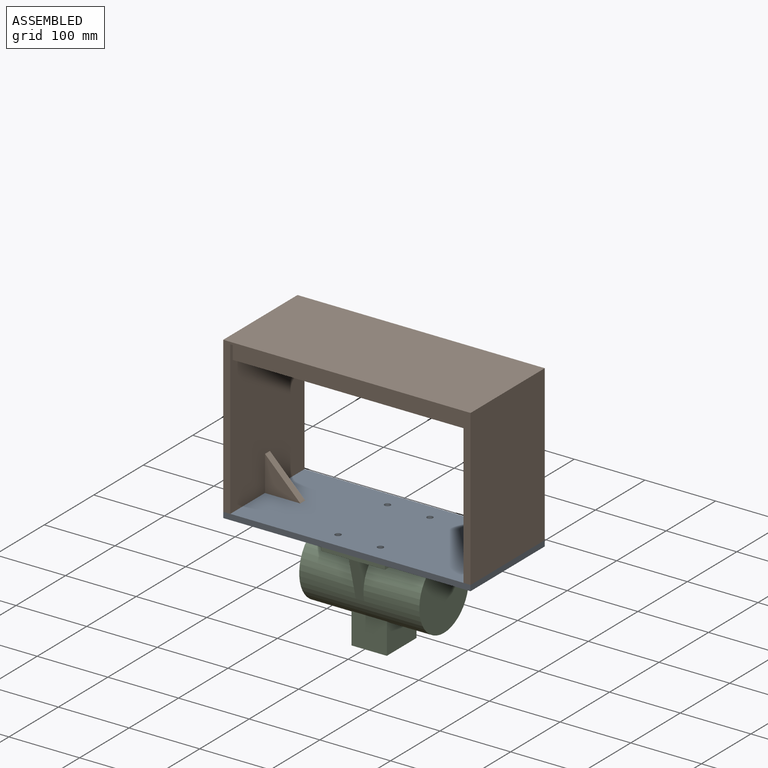
[diagram: assembled view]
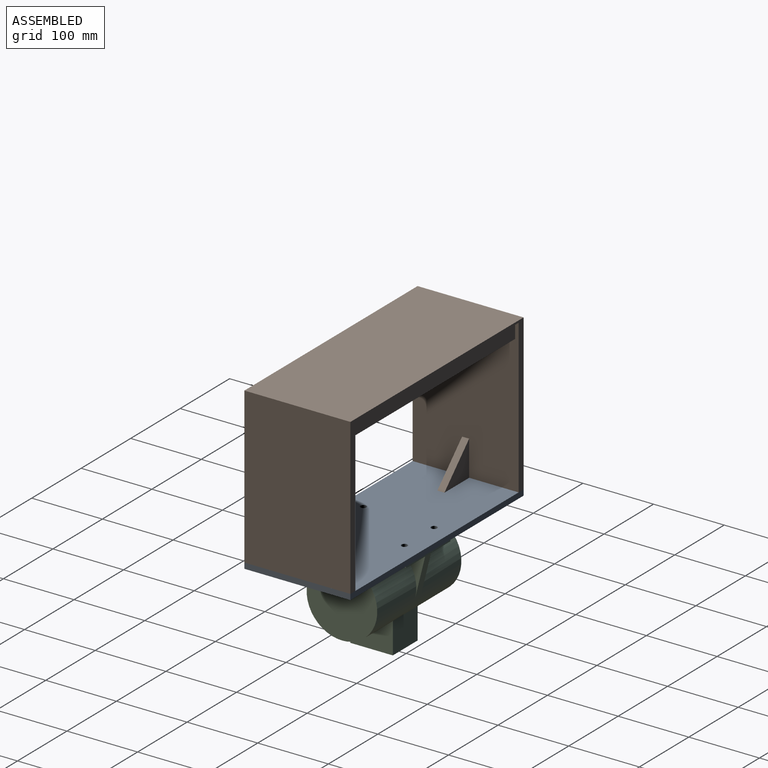
[diagram: assembled view, second angle]
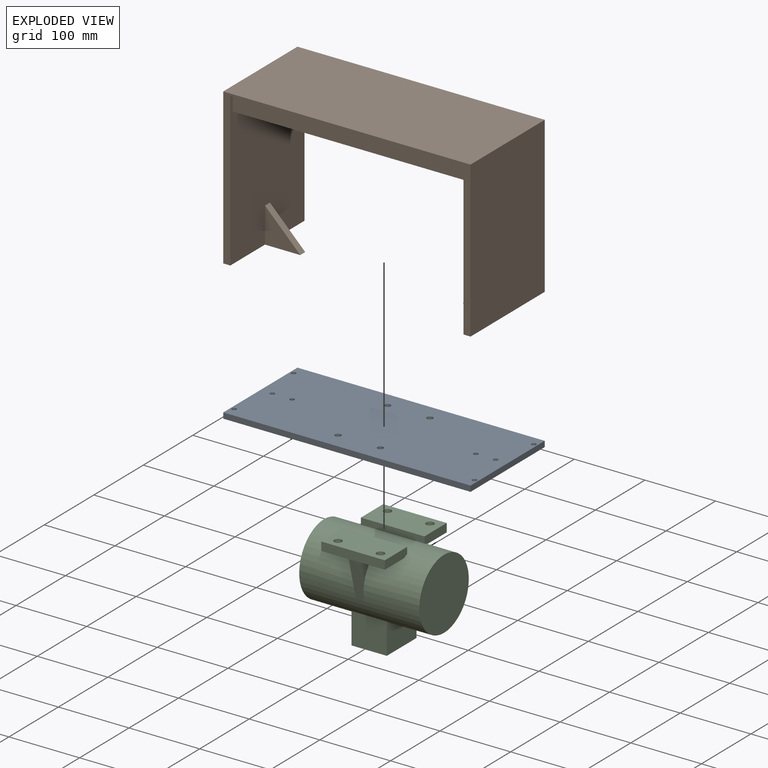
[diagram: exploded view]
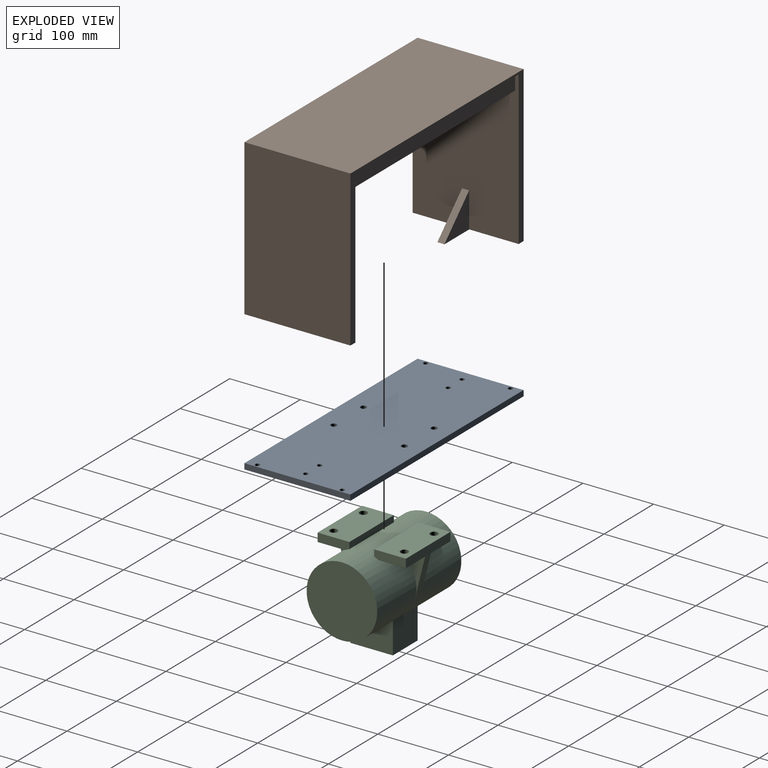
[diagram: exploded view, second angle]
ASSEMBLY  parts=3 mates=2
PART A: 18 faces, bbox 350x150x8 mm
  f0: plane 350x8mm, normal (0,-1,0), area 2800mm2, adj f1,f3,f4,f5
  f1: plane 150x8mm, normal (1,0,0), area 1200mm2, adj f0,f2,f4,f5
  f2: plane 350x8mm, normal (0,1,0), area 2800mm2, adj f1,f3,f4,f5
  f3: plane 150x8mm, normal (-1,0,0), area 1200mm2, adj f0,f2,f4,f5
  f4: plane 350x150mm, normal (0,0,1), area 52007.6mm2, adj f0,f1,f2,f3,f6,f7,f8,f9
  f5: plane 350x150mm, normal (0,0,-1), area 52007.6mm2, adj f0,f1,f2,f3,f6,f7,f8,f9
  f6: cylinder r=3.25mm len=8mm, axis (0,0,-1), area 163.4mm2, adj f4,f5
  f7: cylinder r=3.25mm len=8mm, axis (0,0,-1), area 163.4mm2, adj f4,f5
  f8: cylinder r=3.25mm len=8mm, axis (0,0,-1), area 163.4mm2, adj f4,f5
  f9: cylinder r=3.25mm len=8mm, axis (0,0,-1), area 163.4mm2, adj f4,f5
  f10: cylinder r=3.25mm len=8mm, axis (0,0,-1), area 163.4mm2, adj f4,f5
  f11: cylinder r=3.25mm len=8mm, axis (0,0,-1), area 163.4mm2, adj f4,f5
  f12: cylinder r=3.25mm len=8mm, axis (0,0,-1), area 163.4mm2, adj f4,f5
  f13: cylinder r=3.25mm len=8mm, axis (0,0,-1), area 163.4mm2, adj f4,f5
  f14: cylinder r=4.25mm len=8.5mm, axis (0,0,-1), area 213.6mm2, adj f4,f5
  f15: cylinder r=4.25mm len=8.5mm, axis (0,0,-1), area 213.6mm2, adj f4,f5
  f16: cylinder r=4.25mm len=8.5mm, axis (0,0,-1), area 213.6mm2, adj f4,f5
  f17: cylinder r=4.25mm len=8.5mm, axis (0,0,-1), area 213.6mm2, adj f4,f5
PART B: 52 faces, bbox 350x150x220 mm
  f0: plane 217x150mm, normal (-1,0,0), area 31082mm2, adj f2,f3,f4,f5,f7,f11,f12,f13
  f1: plane 217x150mm, normal (1,0,0), area 31082mm2, adj f2,f3,f4,f5,f7,f10,f12,f13
  f2: plane 330x5mm, normal (0,0,-1), area 1650mm2, adj f0,f1,f5,f16
  f3: plane 330x96mm, normal (0,0,-1), area 31680mm2, adj f0,f1,f14,f15
  f4: plane 330x5mm, normal (0,0,-1), area 1650mm2, adj f0,f1,f7,f12
  f5: plane 350x220mm, normal (0,-1,0), area 5390mm2, adj f0,f1,f2,f6,f8,f9,f10,f11
  f6: plane 220x150mm, normal (1,0,0), area 33000mm2, adj f5,f7,f9,f11
  f7: plane 350x220mm, normal (0,1,0), area 5390mm2, adj f0,f1,f4,f6,f8,f9,f10,f11
  f8: plane 220x150mm, normal (-1,0,0), area 33000mm2, adj f5,f7,f9,f10
  f9: plane 350x150mm, normal (0,0,1), area 52500mm2, adj f5,f6,f7,f8
  f10: plane 150x60mm, normal (0,0,-1), area 1921.5mm2, adj f1,f5,f7,f8,f18,f19,f20,f25
  f11: plane 150x60mm, normal (0,0,-1), area 1921.5mm2, adj f0,f5,f6,f7,f21,f22,f23,f33
  f12: plane 330x22mm, normal (0,1,0), area 7260mm2, adj f0,f1,f4,f13
  f13: plane 330x22mm, normal (0,0,-1), area 7260mm2, adj f0,f1,f12,f14
  f14: plane 330x22mm, normal (0,-1,0), area 7260mm2, adj f0,f1,f3,f13
  f15: plane 330x22mm, normal (0,1,0), area 7260mm2, adj f0,f1,f3,f17
  f16: plane 330x22mm, normal (0,-1,0), area 7260mm2, adj f0,f1,f2,f17
  f17: plane 330x22mm, normal (0,0,-1), area 7260mm2, adj f0,f1,f15,f16
  f18: plane 50x50mm, normal (0.71,0,0.71), area 707.1mm2, adj f1,f10,f19,f20
  f19: plane 50x50mm, normal (0,-1,0), area 1250mm2, adj f1,f10,f18
  f20: plane 50x50mm, normal (0,1,0), area 1250mm2, adj f1,f10,f18
  f21: plane 50x50mm, normal (-0.71,0,0.71), area 707.1mm2, adj f0,f11,f22,f23
  f22: plane 50x50mm, normal (0,-1,0), area 1250mm2, adj f0,f11,f21
  f23: plane 50x50mm, normal (0,1,0), area 1250mm2, adj f0,f11,f21
  f24: cone r=0mm half-angle=59deg, axis (0,0,-1), area 22.9mm2, adj f25
  f25: cylinder r=2.5mm len=10mm, axis (0,0,-1), area 157.1mm2, adj f10,f24
  f26: cone r=0mm half-angle=59deg, axis (0,0,-1), area 22.9mm2, adj f27
  f27: cylinder r=2.5mm len=10mm, axis (0,0,-1), area 157.1mm2, adj f10,f26
  f28: cone r=0mm half-angle=59deg, axis (0,0,-1), area 22.9mm2, adj f29
  f29: cylinder r=2.5mm len=10mm, axis (0,0,-1), area 157.1mm2, adj f10,f28
  f30: cone r=0mm half-angle=59deg, axis (0,0,-1), area 22.9mm2, adj f31
  f31: cylinder r=2.5mm len=10mm, axis (0,0,-1), area 157.1mm2, adj f10,f30
  f32: cone r=0mm half-angle=59deg, axis (0,0,-1), area 22.9mm2, adj f33
  f33: cylinder r=2.5mm len=10mm, axis (0,0,-1), area 157.1mm2, adj f11,f32
  f34: cone r=0mm half-angle=59deg, axis (0,0,-1), area 22.9mm2, adj f35
  f35: cylinder r=2.5mm len=10mm, axis (0,0,-1), area 157.1mm2, adj f11,f34
  f36: cone r=0mm half-angle=59deg, axis (0,0,-1), area 22.9mm2, adj f37
  f37: cylinder r=2.5mm len=10mm, axis (0,0,-1), area 157.1mm2, adj f11,f36
  f38: cone r=0mm half-angle=59deg, axis (0,0,-1), area 22.9mm2, adj f39
  f39: cylinder r=2.5mm len=10mm, axis (0,0,-1), area 157.1mm2, adj f11,f38
  f40: plane 18x18mm, normal (-1,0,0), area 324mm2, adj f41,f42,f43,f44
  f41: plane 330x18mm, normal (0,-1,0), area 5940mm2, adj f40,f42,f44,f45
  f42: plane 330x18mm, normal (0,0,-1), area 5940mm2, adj f40,f41,f43,f45
  f43: plane 330x18mm, normal (0,1,0), area 5940mm2, adj f40,f42,f44,f45
  f44: plane 330x18mm, normal (0,0,1), area 5940mm2, adj f40,f41,f43,f45
  f45: plane 18x18mm, normal (1,0,0), area 324mm2, adj f41,f42,f43,f44
  f46: plane 330x18mm, normal (0,0,-1), area 5940mm2, adj f47,f49,f50,f51
  f47: plane 330x18mm, normal (0,-1,0), area 5940mm2, adj f46,f48,f50,f51
  f48: plane 330x18mm, normal (0,0,1), area 5940mm2, adj f47,f49,f50,f51
  f49: plane 330x18mm, normal (0,1,0), area 5940mm2, adj f46,f48,f50,f51
  f50: plane 18x18mm, normal (-1,0,0), area 324mm2, adj f46,f47,f48,f49
  f51: plane 18x18mm, normal (1,0,0), area 324mm2, adj f46,f47,f48,f49
PART C: 32 faces, bbox 170x125x140 mm
  f0: cylinder r=50mm len=170mm, axis (-1,0,0), area 47369.1mm2, adj f1,f2,f3,f4,f6,f7,f8,f9
  f1: plane 100x100mm, normal (1,0,0), area 7854mm2, adj f0
  f2: plane 100x100mm, normal (-1,0,0), area 7854mm2, adj f0
  f3: plane 50x44mm, normal (0,1,0), area 2200mm2, adj f0,f5,f6,f7
  f4: plane 50x44mm, normal (0,-1,0), area 2200mm2, adj f0,f5,f6,f7
  f5: plane 60x50mm, normal (0,0,1), area 3000mm2, adj f3,f4,f6,f7
  f6: plane 60x44mm, normal (1,0,0), area 2231.2mm2, adj f0,f3,f4,f5
  f7: plane 60x44mm, normal (-1,0,0), area 2231.2mm2, adj f0,f3,f4,f5
  f8: plane 56.1x13.99mm, normal (0,-0.97,0.24), area 693.7mm2, adj f0,f9,f10,f16
  f9: plane 56.1x38.75mm, normal (1,0,0), area 647.6mm2, adj f0,f8,f15
  f10: plane 56.1x38.75mm, normal (-1,0,0), area 647.6mm2, adj f0,f8,f18
  f11: plane 56.1x13.99mm, normal (0,0.97,0.24), area 693.7mm2, adj f0,f12,f13,f24
  f12: plane 56.1x38.75mm, normal (1,0,0), area 647.6mm2, adj f0,f11,f25
  f13: plane 56.1x38.75mm, normal (-1,0,0), area 647.6mm2, adj f0,f11,f21
  f14: plane 90x9.16mm, normal (0,1,0), area 824.6mm2, adj f0,f17,f19,f20
  f15: plane 39x38.75mm, normal (0,0,1), area 1416.3mm2, adj f0,f9,f16,f19,f31
  f16: plane 90x12mm, normal (0,-1,0), area 1080mm2, adj f8,f15,f17,f18,f19,f20
  f17: plane 90x45mm, normal (0,0,-1), area 3859.9mm2, adj f14,f16,f19,f20,f30,f31
  f18: plane 39x38.75mm, normal (0,0,1), area 1416.3mm2, adj f0,f10,f16,f20,f30
  f19: plane 45x12mm, normal (1,0,0), area 530.6mm2, adj f0,f14,f15,f16,f17
  f20: plane 45x12mm, normal (-1,0,0), area 530.6mm2, adj f0,f14,f16,f17,f18
  f21: plane 39x38.75mm, normal (0,0,1), area 1416.3mm2, adj f0,f13,f24,f27,f29
  f22: plane 90x9.16mm, normal (0,-1,0), area 824.6mm2, adj f0,f23,f26,f27
  f23: plane 90x45mm, normal (0,0,-1), area 3859.9mm2, adj f22,f24,f26,f27,f28,f29
  f24: plane 90x12mm, normal (0,1,0), area 1080mm2, adj f11,f21,f23,f25,f26,f27
  f25: plane 39x38.75mm, normal (0,0,1), area 1416.3mm2, adj f0,f12,f24,f26,f28
  f26: plane 45x12mm, normal (1,0,0), area 530.6mm2, adj f0,f22,f23,f24,f25
  f27: plane 45x12mm, normal (-1,0,0), area 530.6mm2, adj f0,f21,f22,f23,f24
  f28: cylinder r=5.5mm len=12mm, axis (0,0,-1), area 414.7mm2, adj f23,f25
  f29: cylinder r=5.5mm len=12mm, axis (0,0,-1), area 414.7mm2, adj f21,f23
  f30: cylinder r=5.5mm len=12mm, axis (0,0,-1), area 414.7mm2, adj f17,f18
  f31: cylinder r=5.5mm len=12mm, axis (0,0,-1), area 414.7mm2, adj f15,f17
PLACE A t=(48.81,-97.14,-187.98)mm
PLACE B t=(48.81,-97.14,37.02)mm
PLACE C rot(axis=(0,1,0),180deg) t=(48.81,-97.14,-243.98)mm
MATE fastened C.f31 <-> A.f14  axis (0,0,1) through (18.81,-147.14,-187.98)mm
MATE fastened B.f28 <-> A.f6  axis (0,0,-1) through (-121.19,-157.14,-179.98)mm
